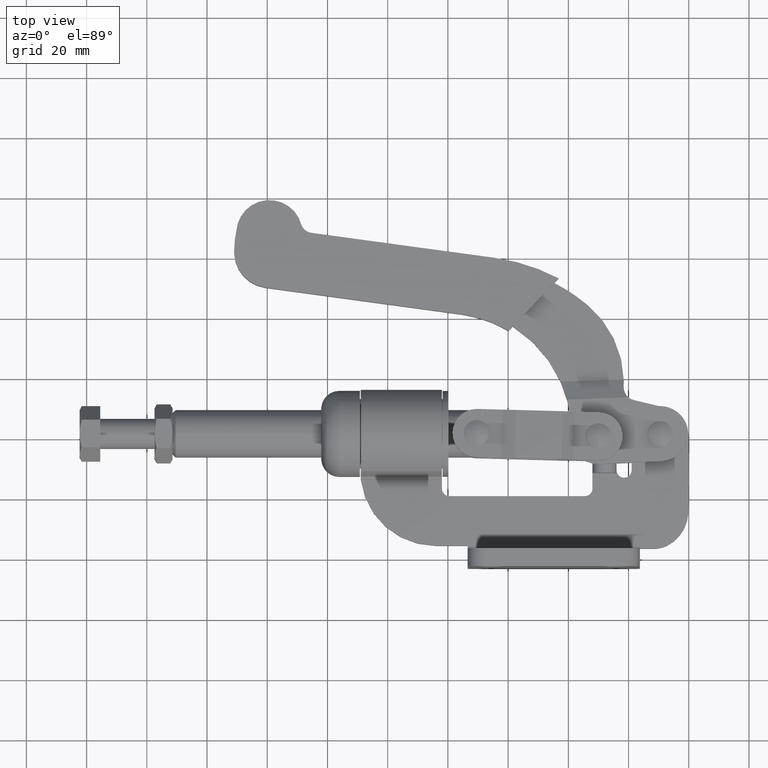
[diagram: clean part render]
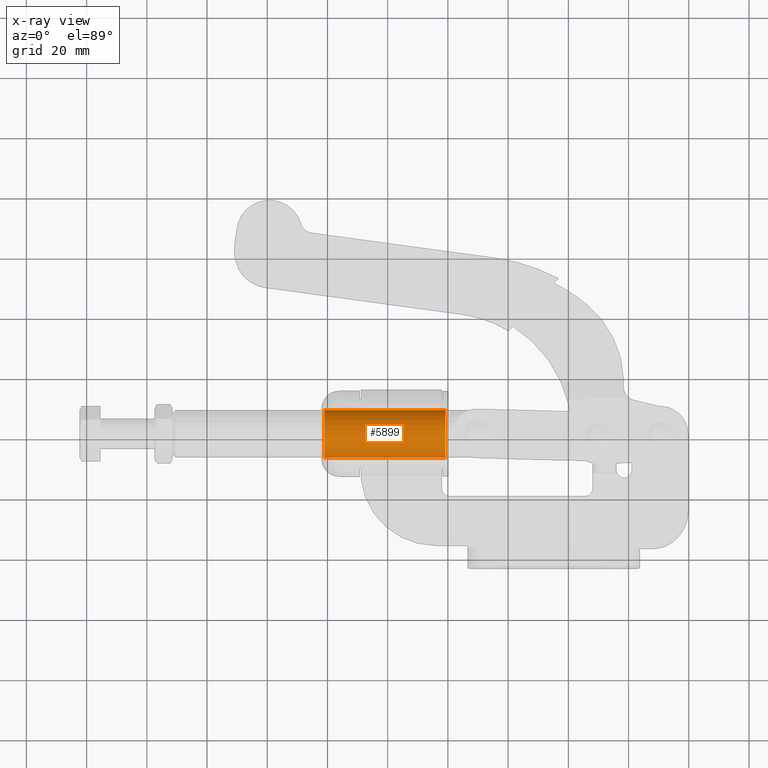
[diagram: x-ray — body ghosted, one internal face saturated and labeled with its STEP entity id]
A machine part, top view, then the same camera in x-ray: the body is ghosted and one INTERNAL B-rep face — a face not visible from any outside direction — is saturated and labeled: STEP entity #5899.
In plain terms, the highlighted cylindrical surface (edge-blend (fillet) strip) has radius 7.925 mm, axis along (-1, -0, -0).
Its self-contained STEP definition (entity closure, byte-faithful):
#16 = CARTESIAN_POINT ( 'NONE',  ( -80.85636740753037100, 33.47499999999989500, -9.310932312975375100E-013 ) ) ;
#52 = ORIENTED_EDGE ( 'NONE', *, *, #4057, .T. ) ;
#156 = DIRECTION ( 'NONE',  ( 1.751140417389847200E-015, -1.000000000000000000, 0.0000000000000000000 ) ) ;
#246 = CARTESIAN_POINT ( 'NONE',  ( -121.0783666547270100, 33.47499999999975300, -6.197561718147439400E-013 ) ) ;
#252 = DIRECTION ( 'NONE',  ( -1.000000000000000000, -1.801273951856384800E-015, -4.552948687274747300E-017 ) ) ;
#345 = CARTESIAN_POINT ( 'NONE',  ( -108.9655025418543600, 33.47499999999981000, -6.192046793271255700E-013 ) ) ;
#1099 = DIRECTION ( 'NONE',  ( -1.000000000000000000, -1.801273951856384800E-015, -4.552948687274747300E-017 ) ) ;
#1325 = VERTEX_POINT ( 'NONE', #16 ) ;
#1954 = AXIS2_PLACEMENT_3D ( 'NONE', #9140, #4649, #156 ) ;
#2266 = DIRECTION ( 'NONE',  ( -1.000000000000000000, -1.801273951856384800E-015, -4.552948687274747300E-017 ) ) ;
#2710 = CARTESIAN_POINT ( 'NONE',  ( -108.9655025418543900, 49.32499999999978300, -6.182341467388012100E-013 ) ) ;
#2778 = VECTOR ( 'NONE', #7205, 1000.000000000000000 ) ;
#2786 = VERTEX_POINT ( 'NONE', #5638 ) ;
#3315 = ORIENTED_EDGE ( 'NONE', *, *, #8199, .F. ) ;
#3855 = EDGE_CURVE ( 'NONE', #1325, #6652, #9620, .T. ) ;
#4057 = EDGE_CURVE ( 'NONE', #1325, #4334, #4200, .T. ) ;
#4200 = LINE ( 'NONE', #345, #7719 ) ;
#4334 = VERTEX_POINT ( 'NONE', #246 ) ;
#4346 = ORIENTED_EDGE ( 'NONE', *, *, #5730, .T. ) ;
#4353 = AXIS2_PLACEMENT_3D ( 'NONE', #7788, #252, #7024 ) ;
#4492 = FACE_OUTER_BOUND ( 'NONE', #7468, .T. ) ;
#4542 = AXIS2_PLACEMENT_3D ( 'NONE', #6761, #2266, #7507 ) ;
#4649 = DIRECTION ( 'NONE',  ( -1.000000000000000000, -1.801273951856384800E-015, -4.552948687274747300E-017 ) ) ;
#5638 = CARTESIAN_POINT ( 'NONE',  ( -121.0783666547270300, 49.32499999999979700, -9.310945767723152800E-013 ) ) ;
#5730 = EDGE_CURVE ( 'NONE', #4334, #2786, #8125, .T. ) ;
#5895 = CARTESIAN_POINT ( 'NONE',  ( -80.85636740753039900, 49.32499999999979700, -9.321194853152126200E-013 ) ) ;
#5899 = ADVANCED_FACE ( 'NONE', ( #4492 ), #6253, .F. ) ;
#6253 = CYLINDRICAL_SURFACE ( 'NONE', #4353, 7.924999999999987400 ) ;
#6652 = VERTEX_POINT ( 'NONE', #5895 ) ;
#6761 = CARTESIAN_POINT ( 'NONE',  ( -121.0783666547270200, 41.39999999999977800, -6.197561718147439400E-013 ) ) ;
#6776 = LINE ( 'NONE', #2710, #2778 ) ;
#7024 = DIRECTION ( 'NONE',  ( 1.751140417389839500E-015, -1.000000000000000000, 0.0000000000000000000 ) ) ;
#7205 = DIRECTION ( 'NONE',  ( -1.000000000000000000, -1.801273951856384800E-015, -4.552948687274747300E-017 ) ) ;
#7468 = EDGE_LOOP ( 'NONE', ( #3315, #7800, #52, #4346 ) ) ;
#7507 = DIRECTION ( 'NONE',  ( 1.751140417389832000E-015, -1.000000000000000000, 0.0000000000000000000 ) ) ;
#7719 = VECTOR ( 'NONE', #1099, 1000.000000000000000 ) ;
#7788 = CARTESIAN_POINT ( 'NONE',  ( -108.9655025418543800, 41.39999999999980000, -6.192046793271255700E-013 ) ) ;
#7800 = ORIENTED_EDGE ( 'NONE', *, *, #3855, .F. ) ;
#8125 = CIRCLE ( 'NONE', #4542, 7.925000000000022000 ) ;
#8199 = EDGE_CURVE ( 'NONE', #6652, #2786, #6776, .T. ) ;
#9140 = CARTESIAN_POINT ( 'NONE',  ( -80.85636740753038500, 41.39999999999984900, -6.179248848280231000E-013 ) ) ;
#9620 = CIRCLE ( 'NONE', #1954, 7.924999999999952700 ) ;